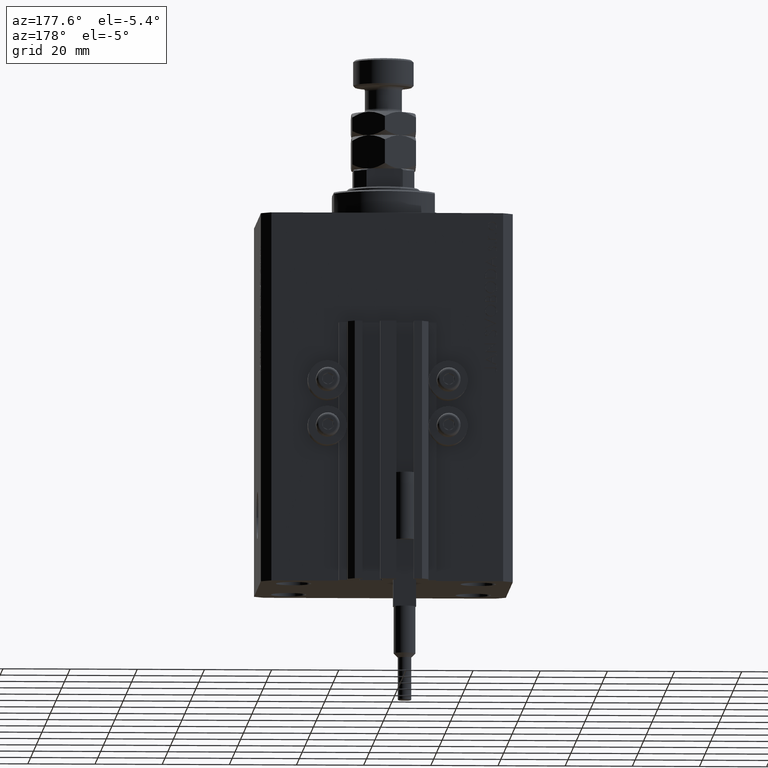
[diagram: clean part render]
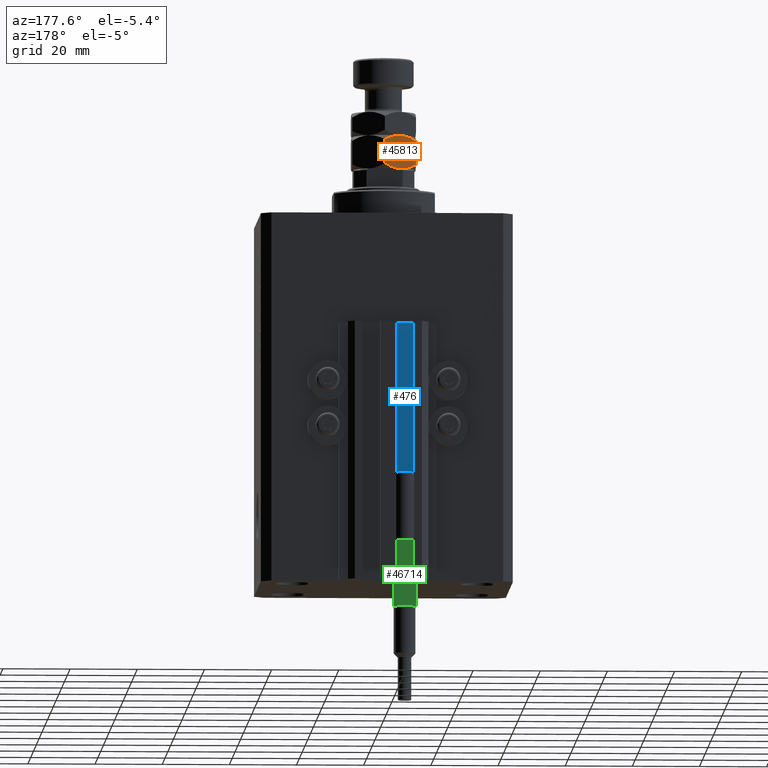
[diagram: same view with three faces highlighted in distinct colors, each labeled with its STEP entity id]
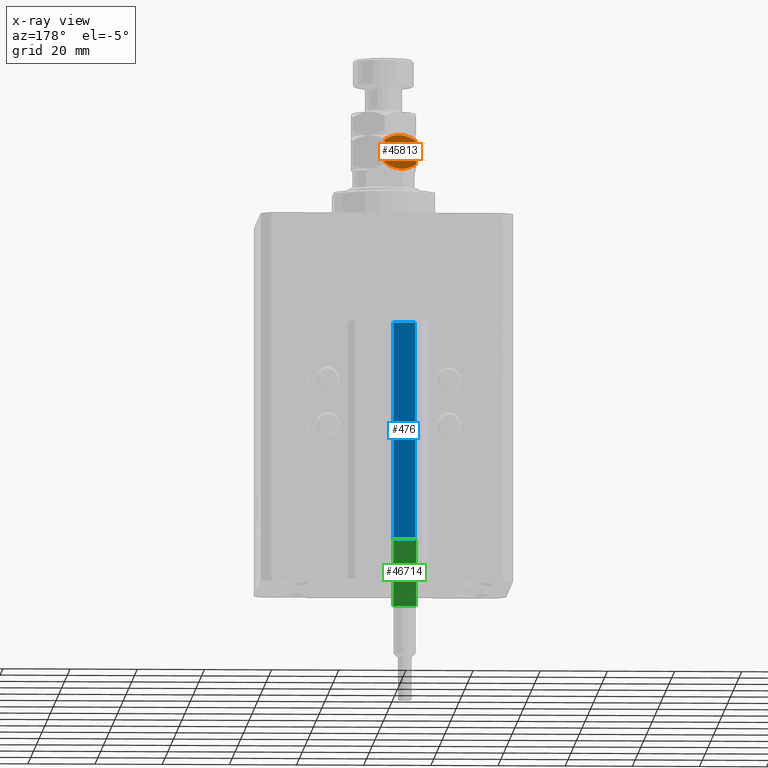
[diagram: x-ray of the same camera — body ghosted, the three highlighted faces saturated]
A machine part, auxiliary view with three faces highlighted in distinct colors.
The next image is the same camera in x-ray (body ghosted, the three faces saturated) — at least one of them is partly hidden behind the body in this view.
Their STEP definitions:

[orange] entity #45813 — the highlighted planar face has unit normal (0.5, -0.866, 0).
#13 = CARTESIAN_POINT ( 'NONE',  ( -6.809745054052670277, 7.038046974532860212, 0.2834621384311906689 ) ) ;
#265 = VERTEX_POINT ( 'NONE', #45596 ) ;
#662 = B_SPLINE_CURVE_WITH_KNOTS ( 'NONE', 3,
 ( #26557, #38099, #19031, #15265, #45896, #16009, #12497, #9229 ),
 .UNSPECIFIED., .F., .F.,
 ( 4, 2, 2, 4 ),
 ( 2.544312669947217931E-07, 0.002843014744722341131, 0.004264394901450013070, 0.005685775058177684575 ),
 .UNSPECIFIED. ) ;
#763 = CARTESIAN_POINT ( 'NONE',  ( -7.993405681187618406, 6.354660192827338960, 0.6741748824712797683 ) ) ;
#2084 = CARTESIAN_POINT ( 'NONE',  ( -3.923784602134044341, 8.704257018318687145, 8.233160247311796338E-16 ) ) ;
#2230 = CARTESIAN_POINT ( 'NONE',  ( -9.500000000000000000, 5.484827557301450440, 8.530344885397113330 ) ) ;
#3460 = CARTESIAN_POINT ( 'NONE',  ( -9.500000000000000000, 5.484827557301449552, 10.00000000000000000 ) ) ;
#4047 = CARTESIAN_POINT ( 'NONE',  ( -4.749999999999995559, 8.227241335952170331, 0.000000000000000000 ) ) ;
#6108 = CARTESIAN_POINT ( 'NONE',  ( -4.749999999999995559, 8.227241335952170331, 0.000000000000000000 ) ) ;
#7066 = EDGE_LOOP ( 'NONE', ( #14817, #43576, #11289, #21441, #9295, #13052 ) ) ;
#7195 = CARTESIAN_POINT ( 'NONE',  ( 7.043584025308272669E-16, 10.96965511460288667, 1.469655114602882007 ) ) ;
#8386 = DIRECTION ( 'NONE',  ( 0.8660254037844389297, 0.4999999999999994449, 0.000000000000000000 ) ) ;
#8401 = CARTESIAN_POINT ( 'NONE',  ( -4.749999999999993783, 8.227241335952166779, 10.00000000000000000 ) ) ;
#8912 = CARTESIAN_POINT ( 'NONE',  ( -8.755994125639032788, 5.914379549142415371, 8.959896877238170632 ) ) ;
#9229 = CARTESIAN_POINT ( 'NONE',  ( -4.749999999999993783, 8.227241335952166779, 10.00000000000000000 ) ) ;
#9295 = ORIENTED_EDGE ( 'NONE', *, *, #9390, .T. ) ;
#9390 = EDGE_CURVE ( 'NONE', #24999, #12436, #17507, .T. ) ;
#11251 = CARTESIAN_POINT ( 'NONE',  ( -4.749999999999993783, 8.227241335952166779, 10.00000000000000000 ) ) ;
#11289 = ORIENTED_EDGE ( 'NONE', *, *, #29487, .F. ) ;
#11626 = B_SPLINE_CURVE_WITH_KNOTS ( 'NONE', 3,
 ( #20340, #23584, #763, #13, #15328, #16316, #16073, #4047 ),
 .UNSPECIFIED., .F., .F.,
 ( 4, 2, 2, 4 ),
 ( 2.544312669946945821E-07, 0.002843014744722347636, 0.004264394901450021744, 0.005685775058177695851 ),
 .UNSPECIFIED. ) ;
#11750 = VERTEX_POINT ( 'NONE', #23939 ) ;
#11973 = EDGE_CURVE ( 'NONE', #265, #11750, #11626, .T. ) ;
#12412 = CARTESIAN_POINT ( 'NONE',  ( -7.990178599141542826, 6.356523349515339483, 9.328363030548731061 ) ) ;
#12436 = VERTEX_POINT ( 'NONE', #7195 ) ;
#12497 = CARTESIAN_POINT ( 'NONE',  ( -4.333978297711722938, 8.467431577757031036, 9.999999999999998224 ) ) ;
#13052 = ORIENTED_EDGE ( 'NONE', *, *, #38358, .F. ) ;
#14817 = ORIENTED_EDGE ( 'NONE', *, *, #11973, .F. ) ;
#15265 = CARTESIAN_POINT ( 'NONE',  ( -2.690254945947323506, 9.416435697371474234, 9.716537861568806278 ) ) ;
#15328 = CARTESIAN_POINT ( 'NONE',  ( -6.408273631871772125, 7.269836608200945349, 0.1797418547120365750 ) ) ;
#16009 = CARTESIAN_POINT ( 'NONE',  ( -3.911732050025008789, 8.711215562523269895, 9.962294231267003752 ) ) ;
#16073 = CARTESIAN_POINT ( 'NONE',  ( -5.166021702288269957, 7.987051094147307850, 9.131015171401357655E-16 ) ) ;
#16174 = CARTESIAN_POINT ( 'NONE',  ( -6.388382028668171841, 7.281321030665156790, 9.854124384224531852 ) ) ;
#16316 = CARTESIAN_POINT ( 'NONE',  ( -5.588267949974988547, 7.743267109381076096, 0.03770576873300184734 ) ) ;
#17507 = LINE ( 'NONE', #32570, #17557 ) ;
#17557 = VECTOR ( 'NONE', #36335, 1000.000000000000000 ) ;
#17887 = CARTESIAN_POINT ( 'NONE',  ( -1.509821400858455398, 10.09795932238899852, 0.6716369694512650534 ) ) ;
#18202 = EDGE_CURVE ( 'NONE', #19238, #265, #45625, .T. ) ;
#19031 = CARTESIAN_POINT ( 'NONE',  ( -1.506594318812380706, 10.09982247907699993, 9.325825117528726338 ) ) ;
#19238 = VERTEX_POINT ( 'NONE', #2230 ) ;
#20340 = CARTESIAN_POINT ( 'NONE',  ( -9.500000000000000000, 5.484827557301450440, 1.469655114602887114 ) ) ;
#20878 = CARTESIAN_POINT ( 'NONE',  ( -3.412354640325339130E-17, 10.96965511460288667, 8.530344885397118659 ) ) ;
#21441 = ORIENTED_EDGE ( 'NONE', *, *, #44279, .F. ) ;
#23428 = FACE_OUTER_BOUND ( 'NONE', #7066, .T. ) ;
#23584 = CARTESIAN_POINT ( 'NONE',  ( -8.755131854751338594, 5.914877381471542961, 1.039605290432796147 ) ) ;
#23939 = CARTESIAN_POINT ( 'NONE',  ( -4.749999999999995559, 8.227241335952170331, 0.000000000000000000 ) ) ;
#24200 = CARTESIAN_POINT ( 'NONE',  ( -9.500000000000000000, 5.484827557301450440, 8.530344885397113330 ) ) ;
#24816 = AXIS2_PLACEMENT_3D ( 'NONE', #35241, #38996, #8386 ) ;
#24999 = VERTEX_POINT ( 'NONE', #20878 ) ;
#26557 = CARTESIAN_POINT ( 'NONE',  ( -3.412354640325339130E-17, 10.96965511460288667, 8.530344885397118659 ) ) ;
#29487 = EDGE_CURVE ( 'NONE', #43633, #19238, #40426, .T. ) ;
#32570 = CARTESIAN_POINT ( 'NONE',  ( 0.000000000000000000, 10.96965511460288667, 10.00000000000000000 ) ) ;
#34488 = PLANE ( 'NONE',  #24816 ) ;
#35241 = CARTESIAN_POINT ( 'NONE',  ( 0.000000000000000000, 10.96965511460288667, 10.00000000000000000 ) ) ;
#36335 = DIRECTION ( 'NONE',  ( -0.000000000000000000, -0.000000000000000000, -1.000000000000000000 ) ) ;
#36839 = VECTOR ( 'NONE', #49389, 1000.000000000000000 ) ;
#38099 = CARTESIAN_POINT ( 'NONE',  ( -0.7448681452486597410, 10.53960529043279770, 8.960394709567207627 ) ) ;
#38143 = B_SPLINE_CURVE_WITH_KNOTS ( 'NONE', 3,
 ( #6108, #2084, #44494, #17887, #48272, #44004 ),
 .UNSPECIFIED., .F., .F.,
 ( 4, 2, 4 ),
 ( 0.005685775058177695851, 0.008508623398180325398, 0.01133147173818295494 ),
 .UNSPECIFIED. ) ;
#38358 = EDGE_CURVE ( 'NONE', #11750, #12436, #38143, .T. ) ;
#38996 = DIRECTION ( 'NONE',  ( 0.4999999999999995004, -0.8660254037844390407, 0.000000000000000000 ) ) ;
#40426 = B_SPLINE_CURVE_WITH_KNOTS ( 'NONE', 3,
 ( #8401, #43037, #16174, #12412, #8912, #24200 ),
 .UNSPECIFIED., .F., .F.,
 ( 4, 2, 4 ),
 ( 0.005685775058177684575, 0.008508623398180318459, 0.01133147173818295321 ),
 .UNSPECIFIED. ) ;
#43037 = CARTESIAN_POINT ( 'NONE',  ( -5.576215397865946777, 7.750225653585649077, 10.00000000000000000 ) ) ;
#43576 = ORIENTED_EDGE ( 'NONE', *, *, #18202, .F. ) ;
#43633 = VERTEX_POINT ( 'NONE', #11251 ) ;
#44004 = CARTESIAN_POINT ( 'NONE',  ( 7.043584025308272669E-16, 10.96965511460288667, 1.469655114602882007 ) ) ;
#44279 = EDGE_CURVE ( 'NONE', #24999, #43633, #662, .T. ) ;
#44494 = CARTESIAN_POINT ( 'NONE',  ( -3.111617971331824162, 9.173161641239182984, 0.1458756157754679816 ) ) ;
#45596 = CARTESIAN_POINT ( 'NONE',  ( -9.500000000000000000, 5.484827557301450440, 1.469655114602887114 ) ) ;
#45625 = LINE ( 'NONE', #3460, #36839 ) ;
#45813 = ADVANCED_FACE ( 'NONE', ( #23428 ), #34488, .F. ) ;
#45896 = CARTESIAN_POINT ( 'NONE',  ( -3.091726368128223879, 9.184646063703393537, 9.820258145287965590 ) ) ;
#48272 = CARTESIAN_POINT ( 'NONE',  ( -0.7440058743609621050, 10.54010312276192174, 1.040103122761827148 ) ) ;
#49389 = DIRECTION ( 'NONE',  ( -0.000000000000000000, -0.000000000000000000, -1.000000000000000000 ) ) ;

[blue] entity #476 — the highlighted planar face has unit normal (0, 1, 0).
#476 = ADVANCED_FACE ( 'NONE', ( #9685 ), #40291, .T. ) ;
#1219 = VERTEX_POINT ( 'NONE', #47626 ) ;
#2904 = VECTOR ( 'NONE', #28179, 1000.000000000000000 ) ;
#5353 = CARTESIAN_POINT ( 'NONE',  ( -8.199999999999997513, 29.50000000000000355, -110.0000000000000000 ) ) ;
#5920 = DIRECTION ( 'NONE',  ( 0.000000000000000000, 1.000000000000000000, -0.000000000000000000 ) ) ;
#9685 = FACE_OUTER_BOUND ( 'NONE', #28122, .T. ) ;
#12461 = ORIENTED_EDGE ( 'NONE', *, *, #44513, .F. ) ;
#13986 = ORIENTED_EDGE ( 'NONE', *, *, #39511, .F. ) ;
#15397 = VERTEX_POINT ( 'NONE', #22440 ) ;
#21014 = DIRECTION ( 'NONE',  ( -1.000000000000000000, 0.000000000000000000, 0.000000000000000000 ) ) ;
#22147 = DIRECTION ( 'NONE',  ( -1.000000000000000000, 0.000000000000000000, 0.000000000000000000 ) ) ;
#22440 = CARTESIAN_POINT ( 'NONE',  ( -8.199999999999997513, 29.50000000000000355, -33.00000000000000000 ) ) ;
#24770 = CARTESIAN_POINT ( 'NONE',  ( -1.800000000000000933, 29.50000000000000355, -33.00000000000000000 ) ) ;
#24777 = VECTOR ( 'NONE', #21014, 1000.000000000000000 ) ;
#25332 = ORIENTED_EDGE ( 'NONE', *, *, #43128, .T. ) ;
#26638 = DIRECTION ( 'NONE',  ( 0.000000000000000000, 0.000000000000000000, 1.000000000000000000 ) ) ;
#27108 = CARTESIAN_POINT ( 'NONE',  ( -1.800000000000000933, 29.50000000000000355, -33.00000000000000000 ) ) ;
#27671 = VERTEX_POINT ( 'NONE', #27108 ) ;
#28122 = EDGE_LOOP ( 'NONE', ( #12461, #13986, #25332, #35627 ) ) ;
#28179 = DIRECTION ( 'NONE',  ( 0.000000000000000000, 0.000000000000000000, 1.000000000000000000 ) ) ;
#30421 = CARTESIAN_POINT ( 'NONE',  ( -1.800000000000000933, 29.50000000000000355, -110.0000000000000000 ) ) ;
#30662 = LINE ( 'NONE', #30421, #39872 ) ;
#33055 = LINE ( 'NONE', #24770, #24777 ) ;
#35627 = ORIENTED_EDGE ( 'NONE', *, *, #36011, .T. ) ;
#36011 = EDGE_CURVE ( 'NONE', #1219, #15397, #44246, .T. ) ;
#36520 = CARTESIAN_POINT ( 'NONE',  ( -1.800000000000000933, 29.50000000000000355, -110.0000000000000000 ) ) ;
#38710 = AXIS2_PLACEMENT_3D ( 'NONE', #36520, #5920, #43573 ) ;
#39511 = EDGE_CURVE ( 'NONE', #47093, #27671, #30662, .T. ) ;
#39872 = VECTOR ( 'NONE', #26638, 1000.000000000000000 ) ;
#40291 = PLANE ( 'NONE',  #38710 ) ;
#41237 = LINE ( 'NONE', #48540, #44780 ) ;
#42467 = CARTESIAN_POINT ( 'NONE',  ( -1.800000000000000933, 29.50000000000000355, -110.0000000000000000 ) ) ;
#43128 = EDGE_CURVE ( 'NONE', #47093, #1219, #41237, .T. ) ;
#43573 = DIRECTION ( 'NONE',  ( 0.000000000000000000, 0.000000000000000000, 1.000000000000000000 ) ) ;
#44246 = LINE ( 'NONE', #5353, #2904 ) ;
#44513 = EDGE_CURVE ( 'NONE', #27671, #15397, #33055, .T. ) ;
#44780 = VECTOR ( 'NONE', #22147, 1000.000000000000000 ) ;
#47093 = VERTEX_POINT ( 'NONE', #42467 ) ;
#47626 = CARTESIAN_POINT ( 'NONE',  ( -8.199999999999997513, 29.50000000000000355, -110.0000000000000000 ) ) ;
#48540 = CARTESIAN_POINT ( 'NONE',  ( -1.800000000000000933, 29.50000000000000355, -110.0000000000000000 ) ) ;

[green] entity #46714 — the highlighted planar face has unit normal (0, -1, -0).
#2522 = VERTEX_POINT ( 'NONE', #47575 ) ;
#2901 = DIRECTION ( 'NONE',  ( 0.000000000000000000, 1.000000000000000000, 0.000000000000000000 ) ) ;
#3777 = CARTESIAN_POINT ( 'NONE',  ( 3.400000000000000355, -1.500000000000000000, 40.00000000000000000 ) ) ;
#4271 = VERTEX_POINT ( 'NONE', #27967 ) ;
#4765 = VECTOR ( 'NONE', #35439, 1000.000000000000000 ) ;
#4852 = CARTESIAN_POINT ( 'NONE',  ( -3.051229260478471428, -1.500000000000000000, 20.00000000000000000 ) ) ;
#5457 = LINE ( 'NONE', #43597, #46447 ) ;
#6543 = ORIENTED_EDGE ( 'NONE', *, *, #48384, .T. ) ;
#7006 = VECTOR ( 'NONE', #49503, 1000.000000000000000 ) ;
#8804 = VECTOR ( 'NONE', #49259, 1000.000000000000000 ) ;
#11409 = CARTESIAN_POINT ( 'NONE',  ( -3.399999999999999467, -1.500000000000000000, 40.00000000000000000 ) ) ;
#11478 = EDGE_CURVE ( 'NONE', #14314, #38436, #49630, .T. ) ;
#13500 = DIRECTION ( 'NONE',  ( 1.000000000000000000, 0.000000000000000000, 0.000000000000000000 ) ) ;
#14131 = CARTESIAN_POINT ( 'NONE',  ( 3.400000000000000355, -1.500000000000000000, 40.00000000000000000 ) ) ;
#14314 = VERTEX_POINT ( 'NONE', #34609 ) ;
#14686 = FACE_OUTER_BOUND ( 'NONE', #40838, .T. ) ;
#16111 = CARTESIAN_POINT ( 'NONE',  ( -3.399999999999999467, -1.500000000000000000, 40.00000000000000000 ) ) ;
#17298 = ORIENTED_EDGE ( 'NONE', *, *, #18466, .T. ) ;
#17785 = EDGE_CURVE ( 'NONE', #33500, #4271, #37954, .T. ) ;
#17894 = LINE ( 'NONE', #14131, #19010 ) ;
#18466 = EDGE_CURVE ( 'NONE', #4271, #33921, #5457, .T. ) ;
#19010 = VECTOR ( 'NONE', #25414, 1000.000000000000000 ) ;
#19068 = DIRECTION ( 'NONE',  ( 1.000000000000000000, 0.000000000000000000, 0.000000000000000000 ) ) ;
#19496 = DIRECTION ( 'NONE',  ( 1.000000000000000000, 0.000000000000000000, 0.000000000000000000 ) ) ;
#20573 = CARTESIAN_POINT ( 'NONE',  ( 3.400000000000000355, -1.500000000000000000, 20.00000000000000000 ) ) ;
#22687 = PLANE ( 'NONE',  #43954 ) ;
#23945 = EDGE_CURVE ( 'NONE', #2522, #33500, #26399, .T. ) ;
#24086 = VECTOR ( 'NONE', #13500, 1000.000000000000000 ) ;
#25414 = DIRECTION ( 'NONE',  ( -0.000000000000000000, -0.000000000000000000, -1.000000000000000000 ) ) ;
#26399 = LINE ( 'NONE', #26640, #7006 ) ;
#26640 = CARTESIAN_POINT ( 'NONE',  ( -3.399999999999999467, -1.500000000000000000, 20.00000000000000000 ) ) ;
#27566 = ORIENTED_EDGE ( 'NONE', *, *, #17785, .T. ) ;
#27967 = CARTESIAN_POINT ( 'NONE',  ( 3.051229260478471428, -1.500000000000000000, 20.00000000000000000 ) ) ;
#28201 = EDGE_CURVE ( 'NONE', #40655, #14314, #40591, .T. ) ;
#29629 = CARTESIAN_POINT ( 'NONE',  ( -3.399999999999999467, -1.500000000000000000, 40.00000000000000000 ) ) ;
#30489 = DIRECTION ( 'NONE',  ( 0.000000000000000000, -0.000000000000000000, 1.000000000000000000 ) ) ;
#32444 = ORIENTED_EDGE ( 'NONE', *, *, #39369, .F. ) ;
#32534 = DIRECTION ( 'NONE',  ( 1.000000000000000000, 0.000000000000000000, 0.000000000000000000 ) ) ;
#32893 = ORIENTED_EDGE ( 'NONE', *, *, #11478, .F. ) ;
#33216 = CARTESIAN_POINT ( 'NONE',  ( -3.399999999999999467, -1.500000000000000000, 40.00000000000000000 ) ) ;
#33500 = VERTEX_POINT ( 'NONE', #4852 ) ;
#33640 = LINE ( 'NONE', #29629, #35860 ) ;
#33921 = VERTEX_POINT ( 'NONE', #20573 ) ;
#33937 = CARTESIAN_POINT ( 'NONE',  ( -3.399999999999999467, -1.500000000000000000, 20.00000000000000000 ) ) ;
#34609 = CARTESIAN_POINT ( 'NONE',  ( -2.883140648667699146, -1.500000000000000000, 40.00000000000000000 ) ) ;
#35439 = DIRECTION ( 'NONE',  ( -0.000000000000000000, -0.000000000000000000, -1.000000000000000000 ) ) ;
#35860 = VECTOR ( 'NONE', #19068, 1000.000000000000000 ) ;
#37954 = LINE ( 'NONE', #33937, #8804 ) ;
#38436 = VERTEX_POINT ( 'NONE', #45481 ) ;
#38843 = ORIENTED_EDGE ( 'NONE', *, *, #28201, .F. ) ;
#39369 = EDGE_CURVE ( 'NONE', #40643, #33921, #17894, .T. ) ;
#39720 = EDGE_CURVE ( 'NONE', #38436, #40643, #33640, .T. ) ;
#40591 = LINE ( 'NONE', #47892, #24086 ) ;
#40643 = VERTEX_POINT ( 'NONE', #3777 ) ;
#40655 = VERTEX_POINT ( 'NONE', #33216 ) ;
#40838 = EDGE_LOOP ( 'NONE', ( #48931, #27566, #17298, #32444, #43636, #32893, #38843, #6543 ) ) ;
#42212 = LINE ( 'NONE', #16111, #4765 ) ;
#42330 = CARTESIAN_POINT ( 'NONE',  ( -3.399999999999999467, -1.500000000000000000, 40.00000000000000000 ) ) ;
#43597 = CARTESIAN_POINT ( 'NONE',  ( -3.399999999999999467, -1.500000000000000000, 20.00000000000000000 ) ) ;
#43636 = ORIENTED_EDGE ( 'NONE', *, *, #39720, .F. ) ;
#43954 = AXIS2_PLACEMENT_3D ( 'NONE', #11409, #2901, #30489 ) ;
#45481 = CARTESIAN_POINT ( 'NONE',  ( 2.883140648667699146, -1.500000000000000000, 40.00000000000000000 ) ) ;
#46447 = VECTOR ( 'NONE', #32534, 1000.000000000000000 ) ;
#46714 = ADVANCED_FACE ( 'NONE', ( #14686 ), #22687, .F. ) ;
#47316 = VECTOR ( 'NONE', #19496, 1000.000000000000000 ) ;
#47575 = CARTESIAN_POINT ( 'NONE',  ( -3.399999999999999467, -1.500000000000000000, 20.00000000000000000 ) ) ;
#47892 = CARTESIAN_POINT ( 'NONE',  ( -3.399999999999999467, -1.500000000000000000, 40.00000000000000000 ) ) ;
#48384 = EDGE_CURVE ( 'NONE', #40655, #2522, #42212, .T. ) ;
#48931 = ORIENTED_EDGE ( 'NONE', *, *, #23945, .T. ) ;
#49259 = DIRECTION ( 'NONE',  ( 1.000000000000000000, 0.000000000000000000, 0.000000000000000000 ) ) ;
#49503 = DIRECTION ( 'NONE',  ( 1.000000000000000000, 0.000000000000000000, 0.000000000000000000 ) ) ;
#49630 = LINE ( 'NONE', #42330, #47316 ) ;